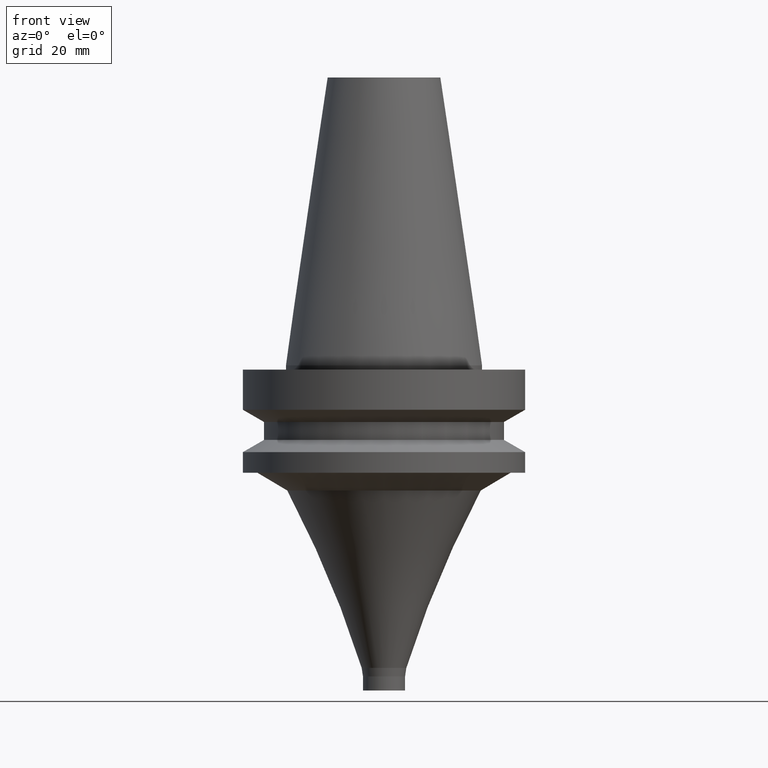
[diagram: clean part render]
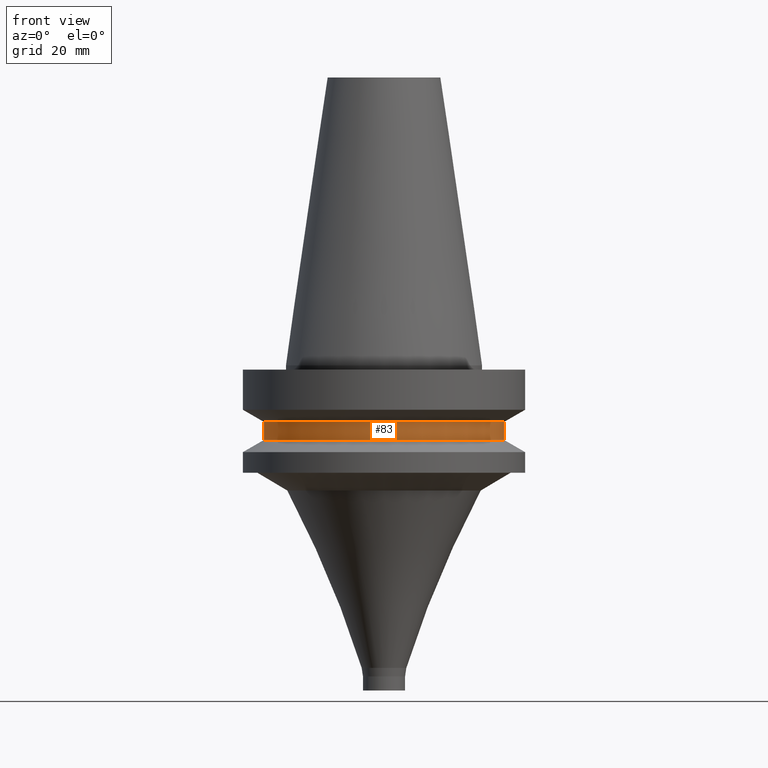
[diagram: same view with one face highlighted and labeled with its STEP entity id]
A machine part, front view. The second image highlights one B-rep face of the part: STEP entity #83.
In plain terms, the highlighted cylindrical surface (bore or boss wall) has radius 42.5 mm, axis along (0, 0, -1).
Its self-contained STEP definition (entity closure, byte-faithful):
#83=ADVANCED_FACE('',(#114,#115),#116,.T.);
#114=FACE_BOUND('',#157,.T.);
#115=FACE_BOUND('',#158,.T.);
#116=CYLINDRICAL_SURFACE('',#159,42.5000000000002);
#157=EDGE_LOOP('',(#216));
#158=EDGE_LOOP('',(#217));
#159=AXIS2_PLACEMENT_3D('',#218,#219,#220);
#216=ORIENTED_EDGE('',*,*,#258,.F.);
#217=ORIENTED_EDGE('',*,*,#257,.T.);
#218=CARTESIAN_POINT('',(1.42059028701091E-015,-2.73145781097076E-014,-23.1999999999997));
#219=DIRECTION('',(6.12323399573677E-017,4.47418976075613E-016,-1.0));
#220=DIRECTION('',(-3.22236635772083E-032,1.0,4.47418976075613E-016));
#257=EDGE_CURVE('',#278,#278,#279,.T.);
#258=EDGE_CURVE('',#280,#280,#281,.T.);
#278=VERTEX_POINT('',#306);
#279=CIRCLE('',#307,42.5000000000001);
#280=VERTEX_POINT('',#308);
#281=CIRCLE('',#309,42.5000000000003);
#306=CARTESIAN_POINT('',(1.61468902700994E-015,42.5000000000001,-26.3698729810775));
#307=AXIS2_PLACEMENT_3D('',#341,#342,#343);
#308=CARTESIAN_POINT('',(1.22649154701188E-015,42.5000000000003,-20.0301270189219));
#309=AXIS2_PLACEMENT_3D('',#344,#345,#346);
#341=CARTESIAN_POINT('',(1.61468902700994E-015,-2.58963167862241E-014,-26.3698729810775));
#342=DIRECTION('',(-6.12323399573677E-017,-4.47418976075613E-016,1.0));
#343=DIRECTION('',(-3.22236635772083E-032,1.0,4.47418976075613E-016));
#344=CARTESIAN_POINT('',(1.22649154701188E-015,-2.87328394331912E-014,-20.0301270189219));
#345=DIRECTION('',(-6.12323399573677E-017,-4.47418976075613E-016,1.0));
#346=DIRECTION('',(-3.22236635772083E-032,1.0,4.47418976075613E-016));